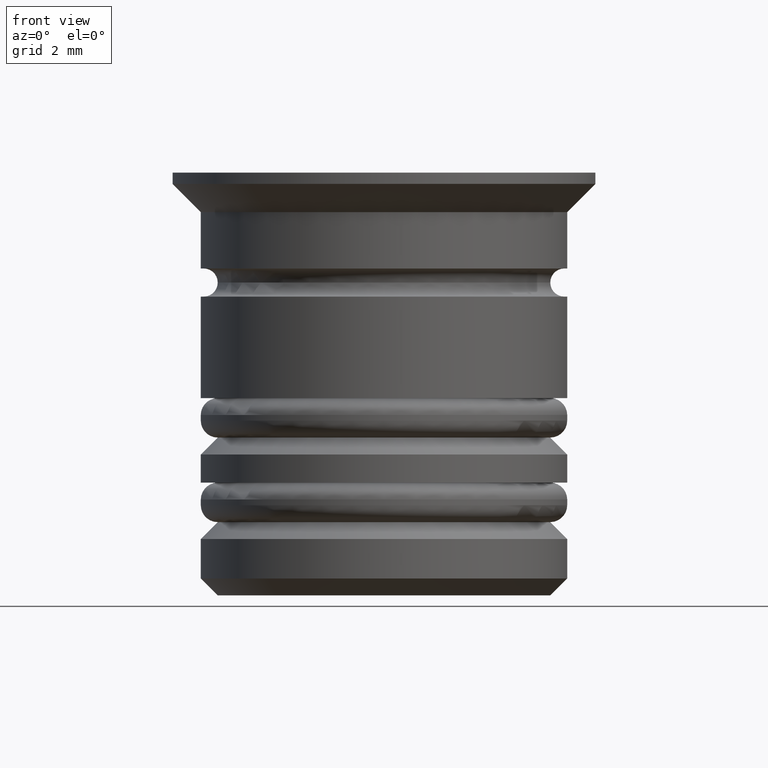
[diagram: clean part render]
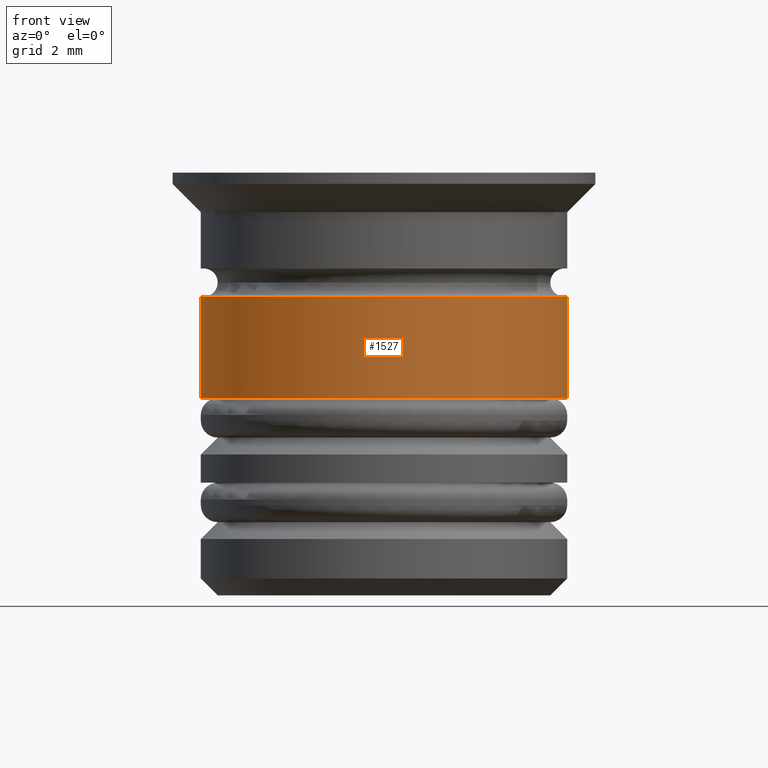
[diagram: same view with one face highlighted and labeled with its STEP entity id]
A machine part, front view. The second image highlights one B-rep face of the part: STEP entity #1527.
In plain terms, the highlighted cylindrical surface (partial cylindrical patch) has radius 3.25 mm, axis along (-0, -0, 1).
Its self-contained STEP definition (entity closure, byte-faithful):
#14 = DIRECTION ( 'NONE',  ( -0.000000000000000000, -0.000000000000000000, 1.000000000000000000 ) ) ;
#76 = CARTESIAN_POINT ( 'NONE',  ( 3.250000000000000000, 0.000000000000000000, -4.000000000000000000 ) ) ;
#102 = DIRECTION ( 'NONE',  ( 1.000000000000000000, 0.000000000000000000, 0.000000000000000000 ) ) ;
#137 = VECTOR ( 'NONE', #1008, 1000.000000000000000 ) ;
#176 = DIRECTION ( 'NONE',  ( -0.000000000000000000, -0.000000000000000000, 1.000000000000000000 ) ) ;
#206 = DIRECTION ( 'NONE',  ( -0.000000000000000000, -0.000000000000000000, 1.000000000000000000 ) ) ;
#294 = DIRECTION ( 'NONE',  ( 1.000000000000000000, 0.000000000000000000, 0.000000000000000000 ) ) ;
#388 = CARTESIAN_POINT ( 'NONE',  ( 0.000000000000000000, 0.000000000000000000, 0.000000000000000000 ) ) ;
#454 = EDGE_CURVE ( 'NONE', #1068, #1097, #792, .T. ) ;
#482 = EDGE_CURVE ( 'NONE', #1097, #948, #1139, .T. ) ;
#539 = AXIS2_PLACEMENT_3D ( 'NONE', #388, #1361, #102 ) ;
#626 = EDGE_LOOP ( 'NONE', ( #636, #1200, #922, #1328 ) ) ;
#636 = ORIENTED_EDGE ( 'NONE', *, *, #666, .F. ) ;
#666 = EDGE_CURVE ( 'NONE', #1068, #1804, #1726, .T. ) ;
#792 = CIRCLE ( 'NONE', #1021, 3.250000000000000000 ) ;
#812 = CARTESIAN_POINT ( 'NONE',  ( -3.250000000000000444, 3.980102097228898231E-16, -4.000000000000000000 ) ) ;
#816 = CARTESIAN_POINT ( 'NONE',  ( 3.249999999999999112, 0.000000000000000000, -2.199999999999999734 ) ) ;
#860 = EDGE_CURVE ( 'NONE', #1804, #948, #883, .T. ) ;
#883 = CIRCLE ( 'NONE', #1280, 3.249999999999999112 ) ;
#922 = ORIENTED_EDGE ( 'NONE', *, *, #482, .T. ) ;
#948 = VERTEX_POINT ( 'NONE', #816 ) ;
#996 = CARTESIAN_POINT ( 'NONE',  ( 0.000000000000000000, 0.000000000000000000, -4.000000000000000000 ) ) ;
#1008 = DIRECTION ( 'NONE',  ( -0.000000000000000000, -0.000000000000000000, 1.000000000000000000 ) ) ;
#1021 = AXIS2_PLACEMENT_3D ( 'NONE', #996, #14, #294 ) ;
#1068 = VERTEX_POINT ( 'NONE', #812 ) ;
#1097 = VERTEX_POINT ( 'NONE', #76 ) ;
#1139 = LINE ( 'NONE', #1706, #137 ) ;
#1151 = CARTESIAN_POINT ( 'NONE',  ( -3.249999999999999556, 3.980102097228897245E-16, 0.000000000000000000 ) ) ;
#1200 = ORIENTED_EDGE ( 'NONE', *, *, #454, .T. ) ;
#1280 = AXIS2_PLACEMENT_3D ( 'NONE', #1777, #206, #1565 ) ;
#1328 = ORIENTED_EDGE ( 'NONE', *, *, #860, .F. ) ;
#1361 = DIRECTION ( 'NONE',  ( -0.000000000000000000, -0.000000000000000000, 1.000000000000000000 ) ) ;
#1375 = VECTOR ( 'NONE', #176, 1000.000000000000000 ) ;
#1408 = CARTESIAN_POINT ( 'NONE',  ( -3.249999999999999112, 3.980102097228896752E-16, -2.199999999999999734 ) ) ;
#1460 = CYLINDRICAL_SURFACE ( 'NONE', #539, 3.249999999999999556 ) ;
#1527 = ADVANCED_FACE ( 'NONE', ( #1643 ), #1460, .T. ) ;
#1565 = DIRECTION ( 'NONE',  ( 1.000000000000000000, 0.000000000000000000, 0.000000000000000000 ) ) ;
#1643 = FACE_OUTER_BOUND ( 'NONE', #626, .T. ) ;
#1706 = CARTESIAN_POINT ( 'NONE',  ( 3.249999999999999556, 0.000000000000000000, 0.000000000000000000 ) ) ;
#1726 = LINE ( 'NONE', #1151, #1375 ) ;
#1777 = CARTESIAN_POINT ( 'NONE',  ( 0.000000000000000000, 0.000000000000000000, -2.199999999999999734 ) ) ;
#1804 = VERTEX_POINT ( 'NONE', #1408 ) ;